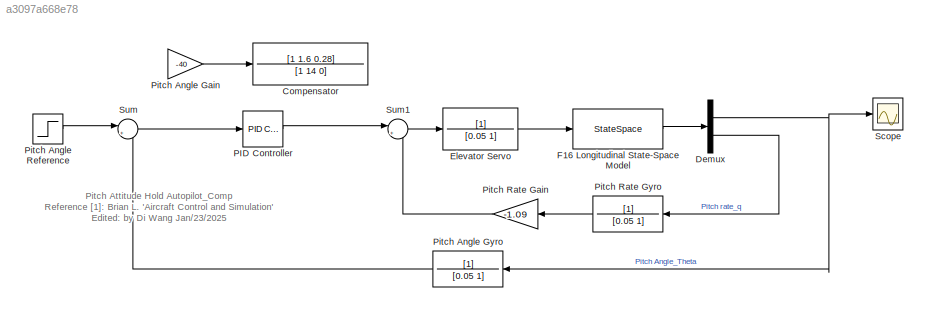
MODEL slx_a3097a668e78
KIND model
CONFIG AbsTol = auto
CONFIG EnableMultiTasking = off
CONFIG FixedStep = auto
CONFIG MaxStep = auto
CONFIG MinStep = auto
CONFIG RelTol = 1e-3
CONFIG SampleTimeConstraint = Unconstrained
CONFIG Solver = VariableStepAuto
CONFIG SolverName = VariableStepAuto
CONFIG StartTime = 0.0
CONFIG StopTime = 20
BLOCK [TransferFcn] Compensator
  Denominator = [1 14 0]
  Numerator = [1 1.6 0.28]
BLOCK [Demux] Demux
  DisplayOption = bar
  Outputs = 2
  Ports = [1, 2]
BLOCK [TransferFcn] Elevator Servo
  Denominator = [0.05 1]
BLOCK [StateSpace] F16 Longitudinal State-Space Model
  A = [-3.8916e-2 1.8992e1 -3.2139e1 0;\n     -1.0285e-3 -6.4537e-1 5.6129e-3 1;\n     0 0 0 1;\n     8.0847e-5 -7.7287e-1 -8.0979e-4 -5.29e-1]
  B = [0; 0; 0; -0.010992]
  C = [0 0 57.296 0;\n     0 0 0 57.296]
  D = [0;0]
  InitialCondition = 0
  Ports = [1, 1]
BLOCK [Reference] PID Controller  REF=simulink/Continuous/PID Controller
  Ports = [1, 1]
  SourceBlock = simulink/Continuous/PID Controller
  SourceProductBaseCode = SL
  SourceProductName = Simulink
  SourceType = PID 1dof
BLOCK [Gain] Pitch Angle Gain
  Gain = -40
  OutDataTypeStr = Inherit: Inherit via internal rule
  ParamDataTypeStr = Inherit: Inherit via internal rule
  SaturateOnIntegerOverflow = off
BLOCK [TransferFcn] Pitch Angle Gyro
  Denominator = [0.05 1]
BLOCK [Step] Pitch Angle Reference
  SampleTime = 0
BLOCK [Gain] Pitch Rate Gain
  Gain = -1.09
  OutDataTypeStr = Inherit: Inherit via internal rule
  ParamDataTypeStr = Inherit: Inherit via internal rule
  SaturateOnIntegerOverflow = off
BLOCK [TransferFcn] Pitch Rate Gyro
  Denominator = [0.05 1]
BLOCK [Scope] Scope
  Floating = off
  NumInputPorts = 1
  Ports = [1]
  ScopeSpecificationString = Simulink.scopes.TimeScopeBlockCfg('CurrentConfiguration', extmgr.ConfigurationSet(extmgr.Configuration('Core','General UI',true),extmgr.Configuration('Core','Source UI',true),extmgr.Configuration('Sources','WiredSimulink',true),extmgr.Configuration('Visuals','Time Domain',true,'SerializedDisplays',{struct('MinYLimReal','-0.13922','MaxYLimReal','1.25294','YLabelReal','','MinYLimMag','0.00000','MaxY...<+1406ch>
BLOCK [Sum] Sum
  IconShape = round
  InputSameDT = off
  Inputs = |+-
  OutDataTypeStr = Inherit: Inherit via internal rule
  Ports = [2, 1]
  SaturateOnIntegerOverflow = off
BLOCK [Sum] Sum1
  IconShape = round
  InputSameDT = off
  Inputs = |+-
  OutDataTypeStr = Inherit: Inherit via internal rule
  Ports = [2, 1]
  SaturateOnIntegerOverflow = off
ANNOTATION (root): Pitch Attitude Hold Autopilot_Comp Reference [1]: Brian L. 'Aircraft Control and Simulation' Edited: by Di Wang Jan/23/2025
NET Demux:1 -> Pitch Angle Gyro:1, Scope:1
LINE Demux:2 -> Pitch Rate Gyro:1
LINE Elevator Servo:1 -> F16 Longitudinal State-Space Model:1
LINE F16 Longitudinal State-Space Model:1 -> Demux:1
LINE PID Controller:1 -> Sum1:1
LINE Pitch Angle Gain:1 -> Compensator:1
LINE Pitch Angle Gyro:1 -> Sum:2
LINE Pitch Angle Reference:1 -> Sum:1
LINE Pitch Rate Gain:1 -> Sum1:2
LINE Pitch Rate Gyro:1 -> Pitch Rate Gain:1
LINE Sum1:1 -> Elevator Servo:1
LINE Sum:1 -> PID Controller:1
note: NET lines group one-source signal fan-out (src -> all destinations, sorted); 1:1 wires keep LINE
